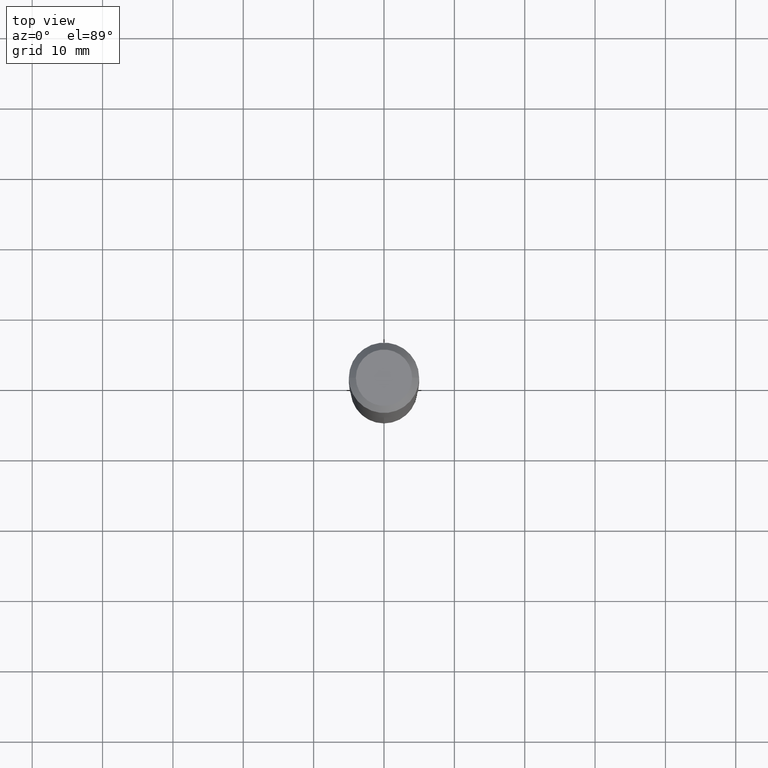
[diagram: clean part render]
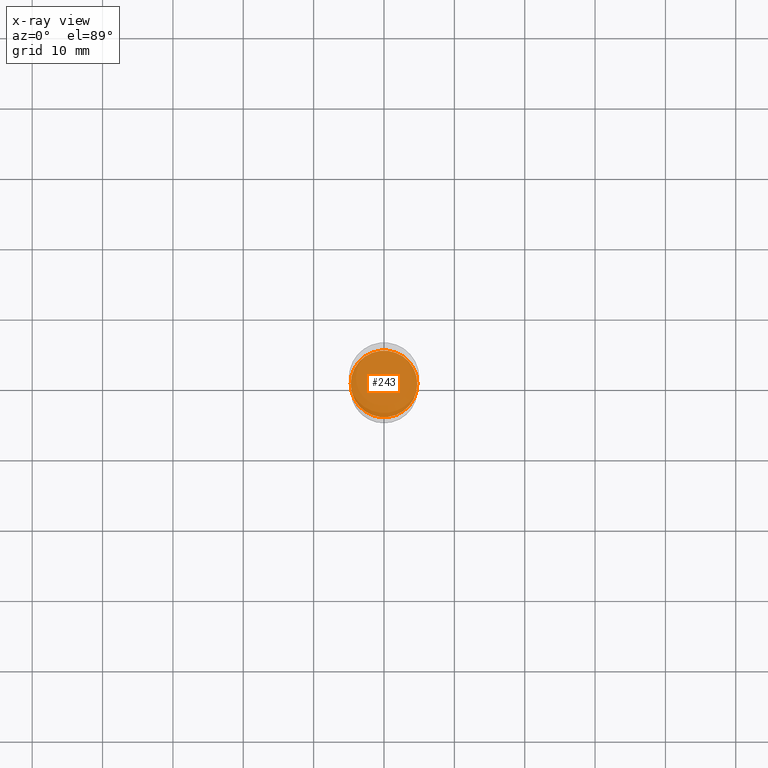
[diagram: x-ray — body ghosted, one internal face saturated and labeled with its STEP entity id]
A machine part, top view, then the same camera in x-ray: the body is ghosted and one INTERNAL B-rep face — a face not visible from any outside direction — is saturated and labeled: STEP entity #243.
In plain terms, the highlighted planar face has unit normal (-0, 0, 1).
Its self-contained STEP definition (entity closure, byte-faithful):
#12 = DIRECTION ( 'NONE',  ( 1.000000000000000000, -6.982962677686268288E-15, 0.000000000000000000 ) ) ;
#45 = AXIS2_PLACEMENT_3D ( 'NONE', #255, #398, #227 ) ;
#51 = DIRECTION ( 'NONE',  ( 1.000000000000000000, -6.982962677686265922E-15, 4.876176775795935793E-29 ) ) ;
#61 = AXIS2_PLACEMENT_3D ( 'NONE', #187, #304, #51 ) ;
#105 = CARTESIAN_POINT ( 'NONE',  ( -0.1864999999999999991, -5.751166985137778976E-15, -2.027499999999999858 ) ) ;
#118 = FACE_OUTER_BOUND ( 'NONE', #308, .T. ) ;
#121 = DIRECTION ( 'NONE',  ( -2.445468806185136597E-29, 3.491481338843145583E-15, 1.000000000000000000 ) ) ;
#166 = CIRCLE ( 'NONE', #45, 0.1864999999999999991 ) ;
#187 = CARTESIAN_POINT ( 'NONE',  ( 7.032042479484773921E-29, -4.109100769917726060E-15, -2.027500000000000302 ) ) ;
#210 = CARTESIAN_POINT ( 'NONE',  ( 0.1864999999999999991, -8.381300953892966011E-15, -2.027499999999999858 ) ) ;
#219 = EDGE_CURVE ( 'NONE', #340, #476, #166, .T. ) ;
#227 = DIRECTION ( 'NONE',  ( 1.000000000000000000, -6.982962677686268288E-15, 0.000000000000000000 ) ) ;
#243 = ADVANCED_FACE ( 'NONE', ( #118 ), #336, .F. ) ;
#247 = EDGE_CURVE ( 'NONE', #476, #340, #327, .T. ) ;
#255 = CARTESIAN_POINT ( 'NONE',  ( 4.958188004540364383E-29, -7.078978414504477806E-15, -2.027499999999999858 ) ) ;
#304 = DIRECTION ( 'NONE',  ( -2.438088387897960049E-29, 3.491481338843145188E-15, 1.000000000000000000 ) ) ;
#308 = EDGE_LOOP ( 'NONE', ( #329, #344 ) ) ;
#312 = AXIS2_PLACEMENT_3D ( 'NONE', #463, #121, #12 ) ;
#327 = CIRCLE ( 'NONE', #312, 0.1864999999999999991 ) ;
#329 = ORIENTED_EDGE ( 'NONE', *, *, #219, .F. ) ;
#336 = PLANE ( 'NONE',  #61 ) ;
#340 = VERTEX_POINT ( 'NONE', #210 ) ;
#344 = ORIENTED_EDGE ( 'NONE', *, *, #247, .F. ) ;
#398 = DIRECTION ( 'NONE',  ( -2.445468806185136597E-29, 3.491481338843145583E-15, 1.000000000000000000 ) ) ;
#463 = CARTESIAN_POINT ( 'NONE',  ( 4.958188004540364383E-29, -7.078978414504477806E-15, -2.027499999999999858 ) ) ;
#476 = VERTEX_POINT ( 'NONE', #105 ) ;